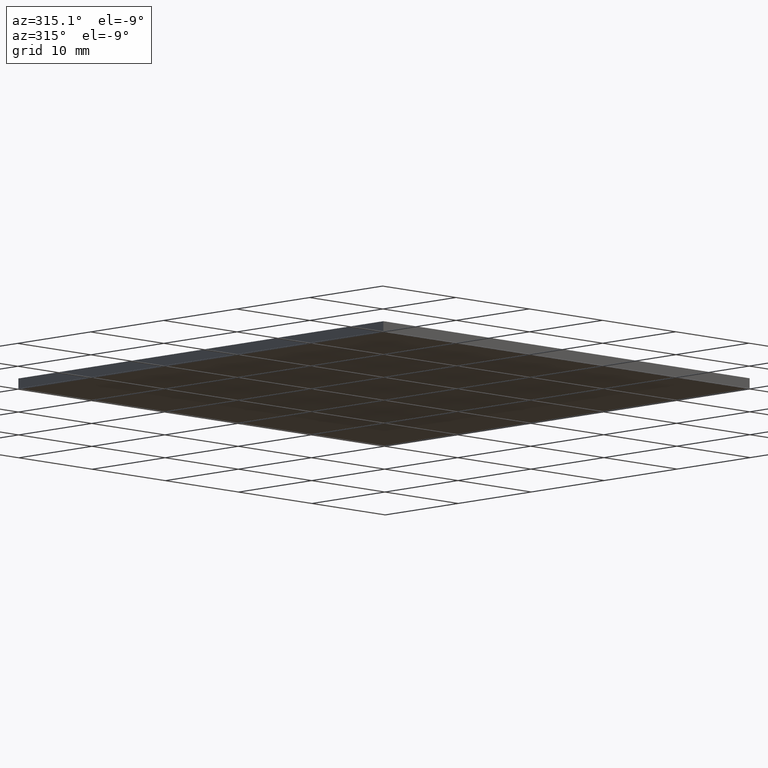
[diagram: clean part render]
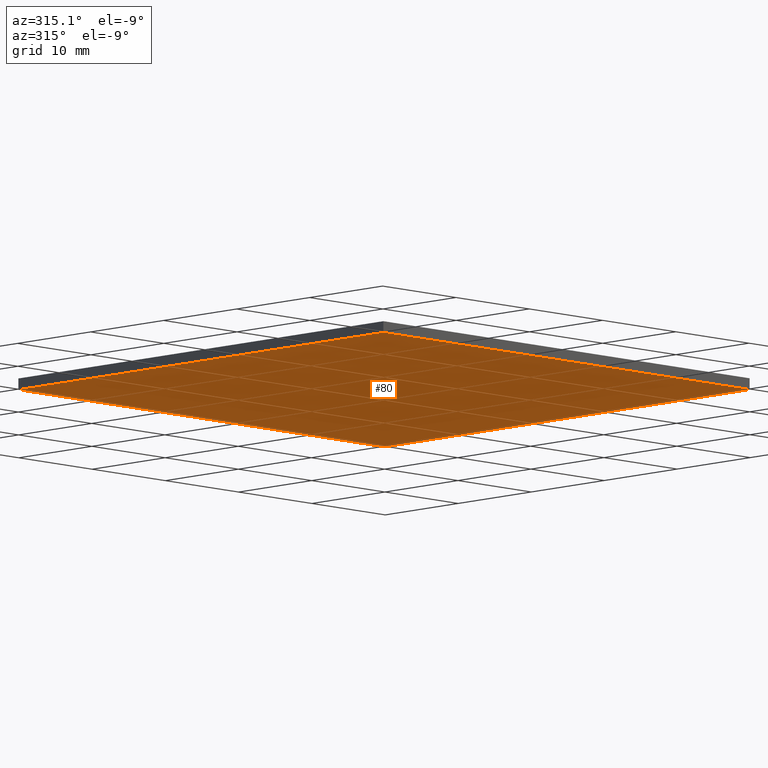
[diagram: same view with one face highlighted and labeled with its STEP entity id]
A machine part, auxiliary view. The second image highlights one B-rep face of the part: STEP entity #80.
In plain terms, the highlighted planar face has unit normal (-0, 0, 1).
Its self-contained STEP definition (entity closure, byte-faithful):
#10 = VECTOR ( 'NONE', #69, 1000.000000000000000 ) ;
#14 = VERTEX_POINT ( 'NONE', #226 ) ;
#21 = DIRECTION ( 'NONE',  ( -0.0000000000000000000, 1.000000000000000000, -0.0000000000000000000 ) ) ;
#40 = CARTESIAN_POINT ( 'NONE',  ( -25.00000000000000000, -25.00000000000000000, 0.0000000000000000000 ) ) ;
#46 = ORIENTED_EDGE ( 'NONE', *, *, #264, .F. ) ;
#51 = LINE ( 'NONE', #122, #129 ) ;
#54 = ORIENTED_EDGE ( 'NONE', *, *, #302, .F. ) ;
#69 = DIRECTION ( 'NONE',  ( 0.0000000000000000000, -1.000000000000000000, 0.0000000000000000000 ) ) ;
#71 = LINE ( 'NONE', #147, #10 ) ;
#80 = ADVANCED_FACE ( 'NONE', ( #120 ), #306, .F. ) ;
#98 = LINE ( 'NONE', #177, #181 ) ;
#115 = CARTESIAN_POINT ( 'NONE',  ( -25.00000000000000000, 25.00000000000000000, 0.0000000000000000000 ) ) ;
#120 = FACE_OUTER_BOUND ( 'NONE', #131, .T. ) ;
#122 = CARTESIAN_POINT ( 'NONE',  ( -25.00000000000000000, 25.00000000000000000, 0.0000000000000000000 ) ) ;
#126 = ORIENTED_EDGE ( 'NONE', *, *, #276, .F. ) ;
#129 = VECTOR ( 'NONE', #222, 1000.000000000000000 ) ;
#131 = EDGE_LOOP ( 'NONE', ( #219, #46, #126, #54 ) ) ;
#139 = VERTEX_POINT ( 'NONE', #40 ) ;
#143 = DIRECTION ( 'NONE',  ( -0.0000000000000000000, 0.0000000000000000000, 1.000000000000000000 ) ) ;
#147 = CARTESIAN_POINT ( 'NONE',  ( -25.00000000000000000, 25.00000000000000000, 0.0000000000000000000 ) ) ;
#150 = CARTESIAN_POINT ( 'NONE',  ( -25.00000000000000000, -25.00000000000000000, 0.0000000000000000000 ) ) ;
#168 = AXIS2_PLACEMENT_3D ( 'NONE', #239, #143, #220 ) ;
#177 = CARTESIAN_POINT ( 'NONE',  ( 25.00000000000000000, 25.00000000000000000, 0.0000000000000000000 ) ) ;
#181 = VECTOR ( 'NONE', #21, 1000.000000000000000 ) ;
#201 = DIRECTION ( 'NONE',  ( 1.000000000000000000, 0.0000000000000000000, 0.0000000000000000000 ) ) ;
#209 = VERTEX_POINT ( 'NONE', #115 ) ;
#219 = ORIENTED_EDGE ( 'NONE', *, *, #247, .F. ) ;
#220 = DIRECTION ( 'NONE',  ( 1.000000000000000000, 0.0000000000000000000, 0.0000000000000000000 ) ) ;
#222 = DIRECTION ( 'NONE',  ( -1.000000000000000000, -0.0000000000000000000, -0.0000000000000000000 ) ) ;
#226 = CARTESIAN_POINT ( 'NONE',  ( 25.00000000000000000, -25.00000000000000000, 0.0000000000000000000 ) ) ;
#239 = CARTESIAN_POINT ( 'NONE',  ( 0.0000000000000000000, 0.0000000000000000000, 0.0000000000000000000 ) ) ;
#247 = EDGE_CURVE ( 'NONE', #209, #139, #71, .T. ) ;
#263 = VERTEX_POINT ( 'NONE', #273 ) ;
#264 = EDGE_CURVE ( 'NONE', #263, #209, #51, .T. ) ;
#273 = CARTESIAN_POINT ( 'NONE',  ( 25.00000000000000000, 25.00000000000000000, 0.0000000000000000000 ) ) ;
#276 = EDGE_CURVE ( 'NONE', #14, #263, #98, .T. ) ;
#291 = LINE ( 'NONE', #150, #305 ) ;
#302 = EDGE_CURVE ( 'NONE', #139, #14, #291, .T. ) ;
#305 = VECTOR ( 'NONE', #201, 1000.000000000000000 ) ;
#306 = PLANE ( 'NONE',  #168 ) ;